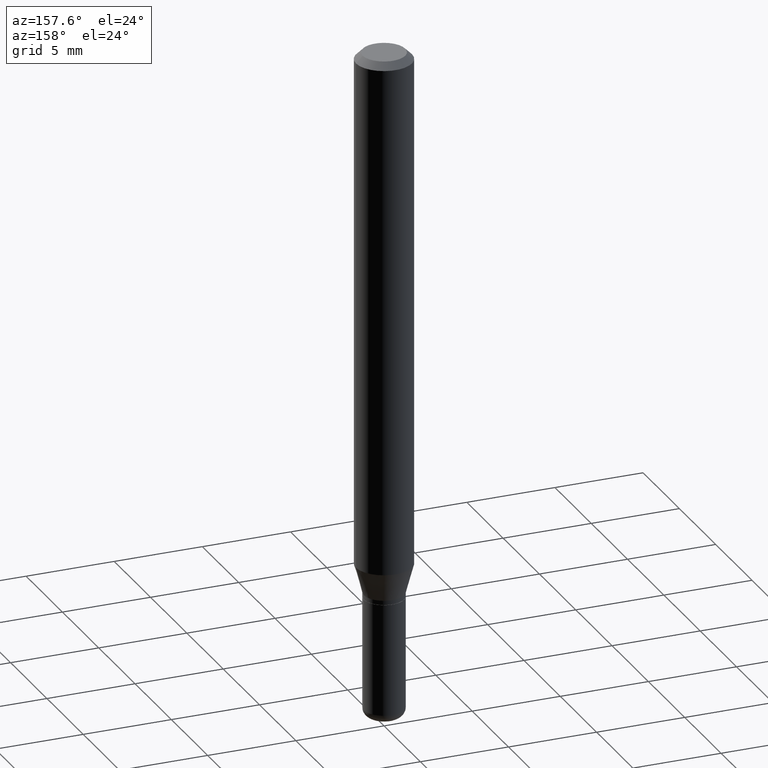
[diagram: clean part render]
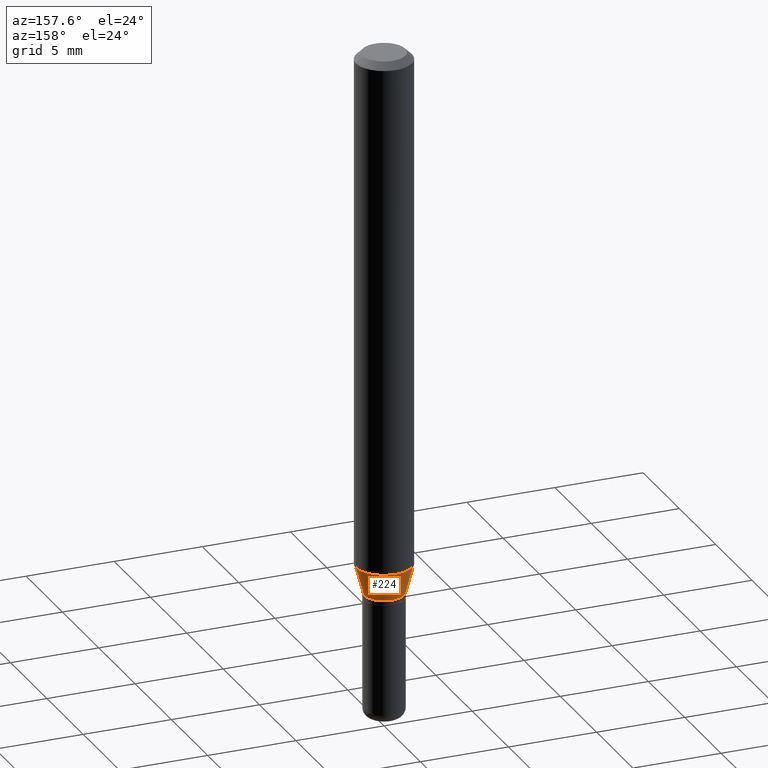
[diagram: same view with one face highlighted and labeled with its STEP entity id]
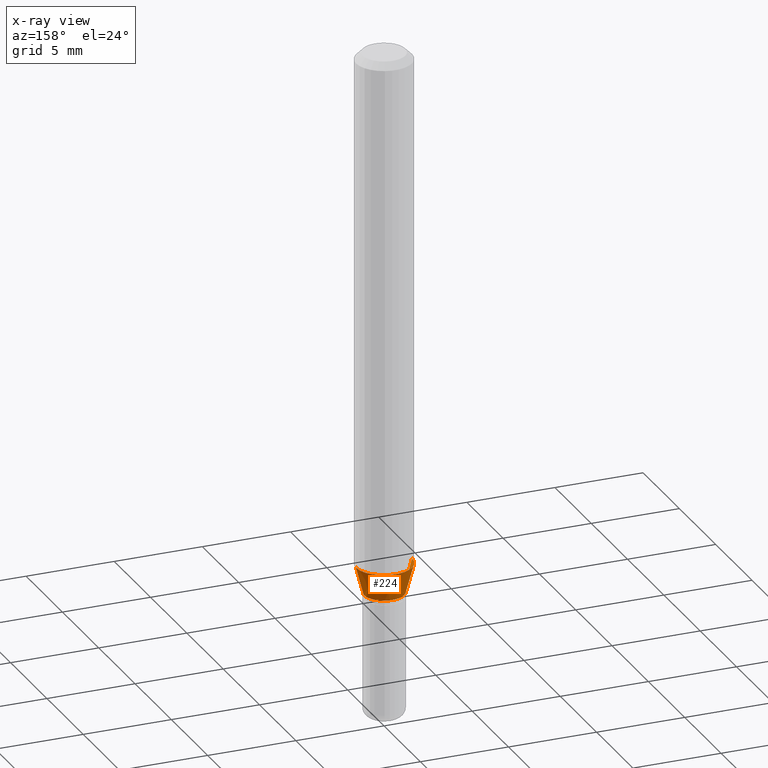
[diagram: x-ray of the same camera — body ghosted, the highlighted face saturated]
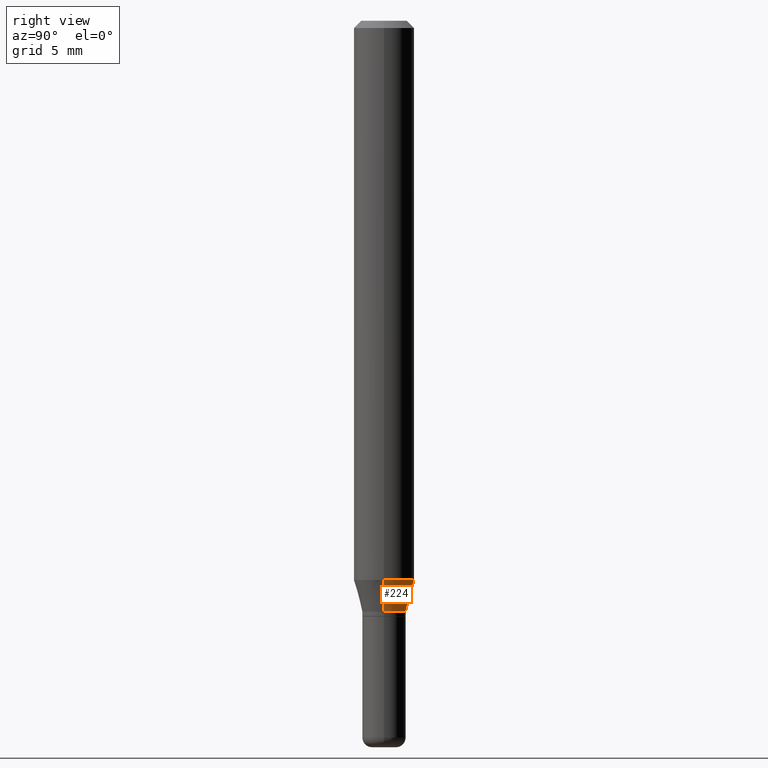
[diagram: same view with one face highlighted and labeled with its STEP entity id]
A machine part, auxiliary view. The second image highlights one B-rep face of the part: STEP entity #224.
The next image is the same camera in x-ray: the body ghosted, the highlighted face saturated — about 0% of this face is hidden behind the body in this view.
A second angle (right view) of the same face is appended — the face is thin or edge-on in the first view.
In plain terms, the highlighted conical surface has half-angle 15 deg.
Its self-contained STEP definition (entity closure, byte-faithful):
#8 = VERTEX_POINT ( 'NONE', #484 ) ;
#20 = ORIENTED_EDGE ( 'NONE', *, *, #427, .F. ) ;
#24 = DIRECTION ( 'NONE',  ( 1.000000000000000000, -6.982962677686269077E-15, 0.000000000000000000 ) ) ;
#45 = CARTESIAN_POINT ( 'NONE',  ( -0.04499999999999999833, -3.939863002296592945E-15, -1.220000000000000195 ) ) ;
#47 = AXIS2_PLACEMENT_3D ( 'NONE', #135, #286, #452 ) ;
#49 = EDGE_CURVE ( 'NONE', #317, #130, #513, .T. ) ;
#76 = DIRECTION ( 'NONE',  ( -0.2588190451025206285, 5.211531920934544731E-15, 0.9659258262890682012 ) ) ;
#83 = ORIENTED_EDGE ( 'NONE', *, *, #333, .F. ) ;
#130 = VERTEX_POINT ( 'NONE', #177 ) ;
#135 = CARTESIAN_POINT ( 'NONE',  ( 2.983471943545866670E-29, -4.259607233388637524E-15, -1.220000000000000195 ) ) ;
#141 = AXIS2_PLACEMENT_3D ( 'NONE', #253, #256, #24 ) ;
#149 = VECTOR ( 'NONE', #308, 39.37007874015748854 ) ;
#154 = ORIENTED_EDGE ( 'NONE', *, *, #378, .T. ) ;
#159 = CARTESIAN_POINT ( 'NONE',  ( 0.04499999999999999833, -4.573840553884519999E-15, -1.220000000000000195 ) ) ;
#177 = CARTESIAN_POINT ( 'NONE',  ( -0.04499999999999999833, -3.763674637602973398E-15, -1.220000000000000195 ) ) ;
#216 = FACE_OUTER_BOUND ( 'NONE', #397, .T. ) ;
#224 = ADVANCED_FACE ( 'NONE', ( #216 ), #228, .T. ) ;
#225 = DIRECTION ( 'NONE',  ( -2.445468806185136597E-29, 3.491481338843145583E-15, 1.000000000000000000 ) ) ;
#228 = CONICAL_SURFACE ( 'NONE', #141, 0.04499999999999999833, 0.2617993877991493523 ) ;
#235 = VERTEX_POINT ( 'NONE', #336 ) ;
#253 = CARTESIAN_POINT ( 'NONE',  ( 2.983471943545866670E-29, -4.259607233388637524E-15, -1.220000000000000195 ) ) ;
#256 = DIRECTION ( 'NONE',  ( -2.445468806185136597E-29, 3.491481338843145583E-15, 1.000000000000000000 ) ) ;
#265 = CARTESIAN_POINT ( 'NONE',  ( 2.823756201468231071E-29, -4.031575482759416467E-15, -1.154689110867544777 ) ) ;
#286 = DIRECTION ( 'NONE',  ( -2.445468806185136597E-29, 3.491481338843145583E-15, 1.000000000000000000 ) ) ;
#308 = DIRECTION ( 'NONE',  ( 0.2588190451025206285, 1.565188264969627095E-15, 0.9659258262890682012 ) ) ;
#317 = VERTEX_POINT ( 'NONE', #159 ) ;
#322 = AXIS2_PLACEMENT_3D ( 'NONE', #265, #225, #434 ) ;
#323 = ORIENTED_EDGE ( 'NONE', *, *, #49, .T. ) ;
#333 = EDGE_CURVE ( 'NONE', #235, #8, #344, .T. ) ;
#336 = CARTESIAN_POINT ( 'NONE',  ( 0.06250000000000000000, -4.468010650114807348E-15, -1.154689110867544777 ) ) ;
#344 = CIRCLE ( 'NONE', #322, 0.06250000000000000000 ) ;
#369 = VECTOR ( 'NONE', #76, 39.37007874015748854 ) ;
#378 = EDGE_CURVE ( 'NONE', #130, #8, #391, .T. ) ;
#382 = LINE ( 'NONE', #469, #149 ) ;
#391 = LINE ( 'NONE', #45, #369 ) ;
#397 = EDGE_LOOP ( 'NONE', ( #323, #154, #83, #20 ) ) ;
#427 = EDGE_CURVE ( 'NONE', #317, #235, #382, .T. ) ;
#434 = DIRECTION ( 'NONE',  ( 1.000000000000000000, -6.982962677686262766E-15, 0.000000000000000000 ) ) ;
#452 = DIRECTION ( 'NONE',  ( 1.000000000000000000, -6.982962677686269077E-15, 0.000000000000000000 ) ) ;
#469 = CARTESIAN_POINT ( 'NONE',  ( 0.04499999999999999833, -4.573840553884519999E-15, -1.220000000000000195 ) ) ;
#484 = CARTESIAN_POINT ( 'NONE',  ( -0.06250000000000000000, -3.587486272909353851E-15, -1.154689110867544777 ) ) ;
#513 = CIRCLE ( 'NONE', #47, 0.04499999999999999833 ) ;